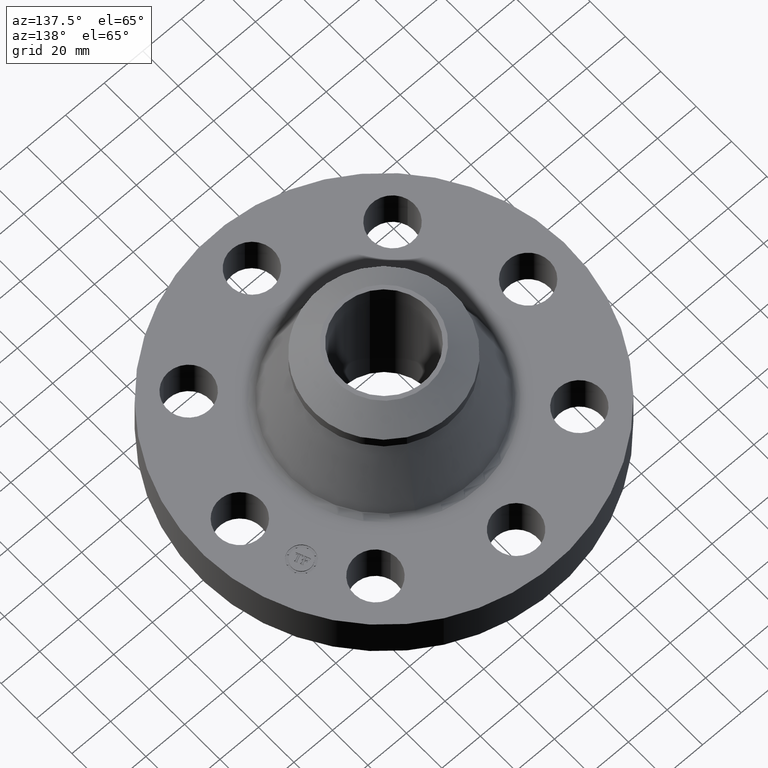
[diagram: clean part render]
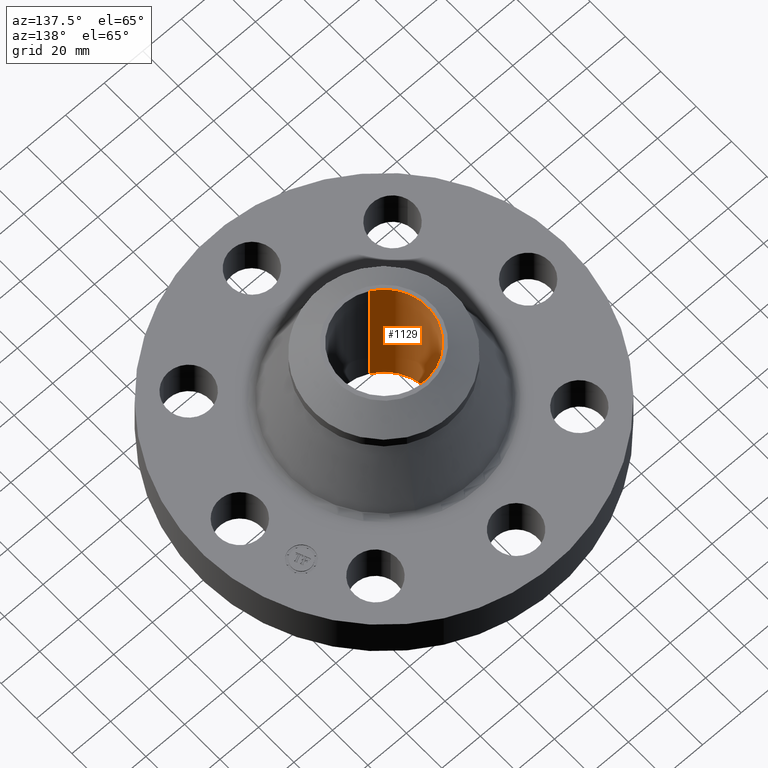
[diagram: same view with one face highlighted and labeled with its STEP entity id]
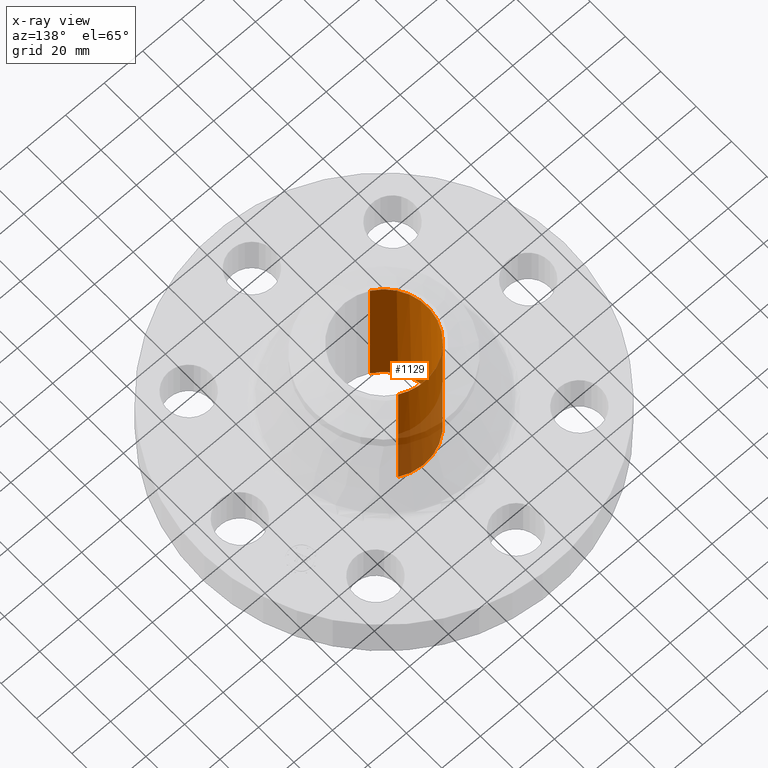
[diagram: x-ray of the same camera — body ghosted, the highlighted face saturated]
A machine part, auxiliary view. The second image highlights one B-rep face of the part: STEP entity #1129.
The next image is the same camera in x-ray: the body ghosted, the highlighted face saturated — about 22% of this face is hidden behind the body in this view.
In plain terms, the highlighted cylindrical surface (partial cylindrical patch) has radius 22.4917 mm, axis along (0, 0, -1).
Its self-contained STEP definition (entity closure, byte-faithful):
#575=AXIS2_PLACEMENT_3D('Circle Axis2P3D',#573,#574,$) ;
#1104=AXIS2_PLACEMENT_3D('Cylinder Axis2P3D',#1101,#1102,#1103) ;
#568=CARTESIAN_POINT('Vertex',(0.424531314436,0.777099358557,2.87727846798E-011)) ;
#570=CARTESIAN_POINT('Vertex',(-0.424531314405,-0.777099358586,0.)) ;
#573=CARTESIAN_POINT('Axis2P3D Location',(1.28117289306E-011,-8.10298460001E-012,0.)) ;
#1072=CARTESIAN_POINT('Vertex',(0.424531314405,0.777099358581,2.94000000001)) ;
#1074=CARTESIAN_POINT('Vertex',(-0.424531314436,-0.777099358557,2.93999999999)) ;
#1077=CARTESIAN_POINT('Line Origine',(0.424531314436,0.777099358557,1.47000000001)) ;
#1082=CARTESIAN_POINT('Line Origine',(-0.424531314436,-0.777099358557,1.47000000001)) ;
#1101=CARTESIAN_POINT('Axis2P3D Location',(0.,0.,1.47000000001)) ;
#1107=CARTESIAN_POINT('Control Point',(-0.424531314436,-0.777099358557,2.94000000001)) ;
#1108=CARTESIAN_POINT('Control Point',(-0.546597796234,-0.710414135625,2.94000000001)) ;
#1109=CARTESIAN_POINT('Control Point',(-0.655570665127,-0.619761215038,2.94000000001)) ;
#1110=CARTESIAN_POINT('Control Point',(-0.745153965952,-0.508549336512,2.94000000001)) ;
#1111=CARTESIAN_POINT('Control Point',(-0.875887501371,-0.256992393893,2.94000000001)) ;
#1112=CARTESIAN_POINT('Control Point',(-0.901795820728,0.0253211049886,2.94)) ;
#1113=CARTESIAN_POINT('Control Point',(-0.886502106768,0.167304737937,2.94)) ;
#1114=CARTESIAN_POINT('Control Point',(-0.801067056211,0.43762492734,2.94)) ;
#1115=CARTESIAN_POINT('Control Point',(-0.619761215038,0.655570665127,2.94)) ;
#1116=CARTESIAN_POINT('Control Point',(-0.508549336512,0.745153965952,2.94)) ;
#1117=CARTESIAN_POINT('Control Point',(-0.256992393894,0.875887501371,2.94)) ;
#1118=CARTESIAN_POINT('Control Point',(0.0253211049886,0.901795820728,2.93999999999)) ;
#1119=CARTESIAN_POINT('Control Point',(0.167304737937,0.886502106768,2.93999999999)) ;
#1120=CARTESIAN_POINT('Control Point',(0.302464832639,0.84378458149,2.93999999999)) ;
#1121=CARTESIAN_POINT('Control Point',(0.424531314436,0.777099358557,2.93999999999)) ;
#574=DIRECTION('Axis2P3D Direction',(0.,0.,-0.0393700787402)) ;
#1078=DIRECTION('Vector Direction',(0.,0.,-0.0393700787402)) ;
#1083=DIRECTION('Vector Direction',(0.,0.,-0.0393700787402)) ;
#1102=DIRECTION('Axis2P3D Direction',(0.,0.,-0.0393700787402)) ;
#1103=DIRECTION('Axis2P3D XDirection',(-0.0188750212049,-0.0345504945626,0.)) ;
#1079=VECTOR('Line Direction',#1078,0.0393700787402) ;
#1084=VECTOR('Line Direction',#1083,0.0393700787402) ;
#1124=ORIENTED_EDGE('',*,*,#1122,.F.) ;
#1125=ORIENTED_EDGE('',*,*,#1086,.T.) ;
#1126=ORIENTED_EDGE('',*,*,#577,.T.) ;
#1127=ORIENTED_EDGE('',*,*,#1081,.F.) ;
#1129=ADVANCED_FACE('PartBody',(#1128),#1105,.F.) ;
#1106=B_SPLINE_CURVE_WITH_KNOTS('',5,(#1107,#1108,#1109,#1110,#1111,#1112,#1113,#1114,#1115,#1116,#1117,#1118,#1119,#1120,#1121),.UNSPECIFIED.,.F.,.U.,(6,3,3,3,6),(-35.3298797435,-17.6649398718,0.,17.6649398718,35.3298797435),.UNSPECIFIED.) ;
#576=CIRCLE('generated circle',#575,0.885500000013) ;
#1105=CYLINDRICAL_SURFACE('generated cylinder',#1104,0.885500000004) ;
#577=EDGE_CURVE('',#571,#569,#576,.T.) ;
#1081=EDGE_CURVE('',#1073,#569,#1080,.T.) ;
#1086=EDGE_CURVE('',#1075,#571,#1085,.T.) ;
#1122=EDGE_CURVE('',#1075,#1073,#1106,.T.) ;
#1123=EDGE_LOOP('',(#1124,#1125,#1126,#1127)) ;
#1128=FACE_OUTER_BOUND('',#1123,.T.) ;
#1080=LINE('Line',#1077,#1079) ;
#1085=LINE('Line',#1082,#1084) ;
#569=VERTEX_POINT('',#568) ;
#571=VERTEX_POINT('',#570) ;
#1073=VERTEX_POINT('',#1072) ;
#1075=VERTEX_POINT('',#1074) ;